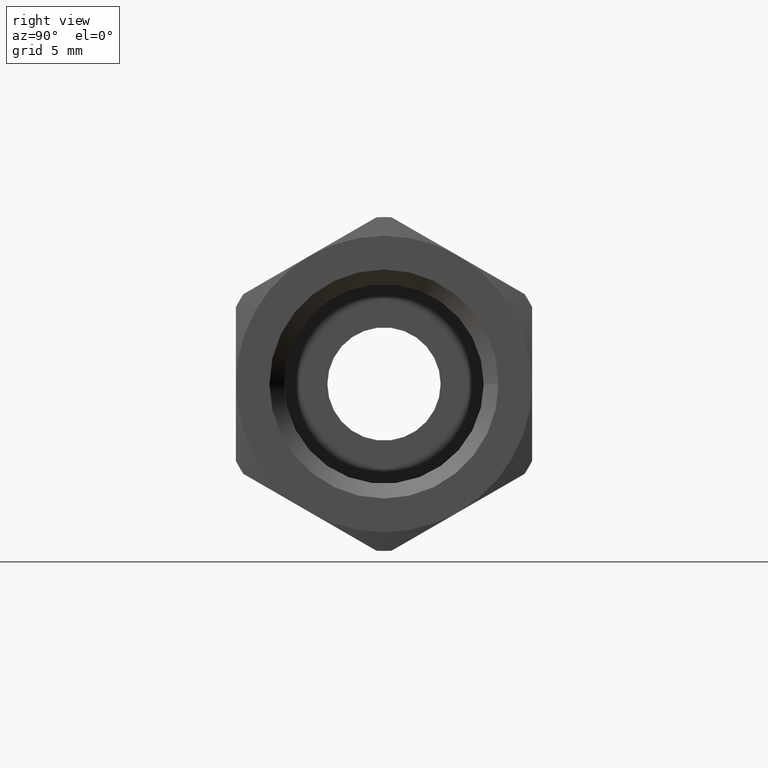
[diagram: clean part render]
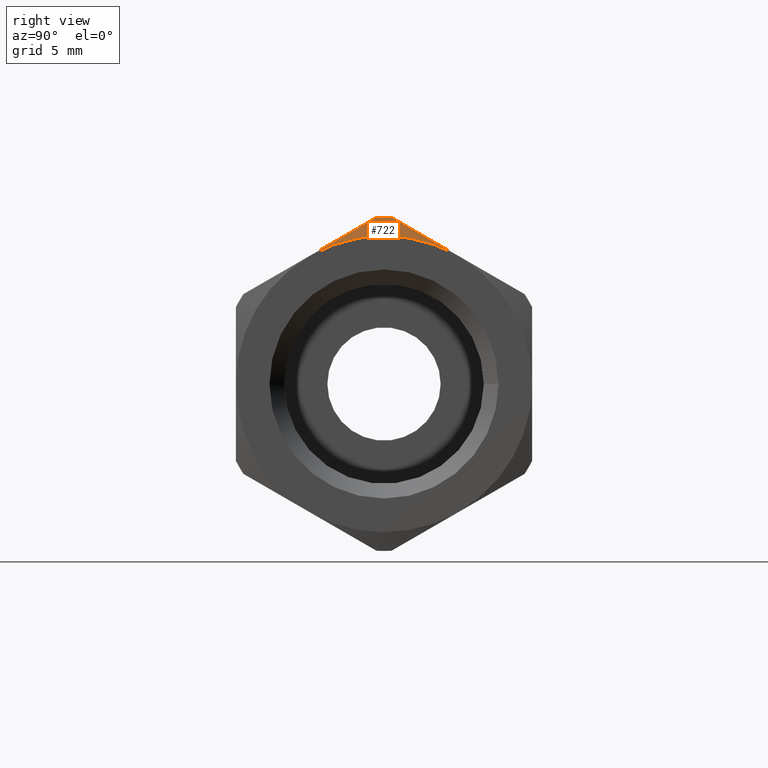
[diagram: same view with one face highlighted and labeled with its STEP entity id]
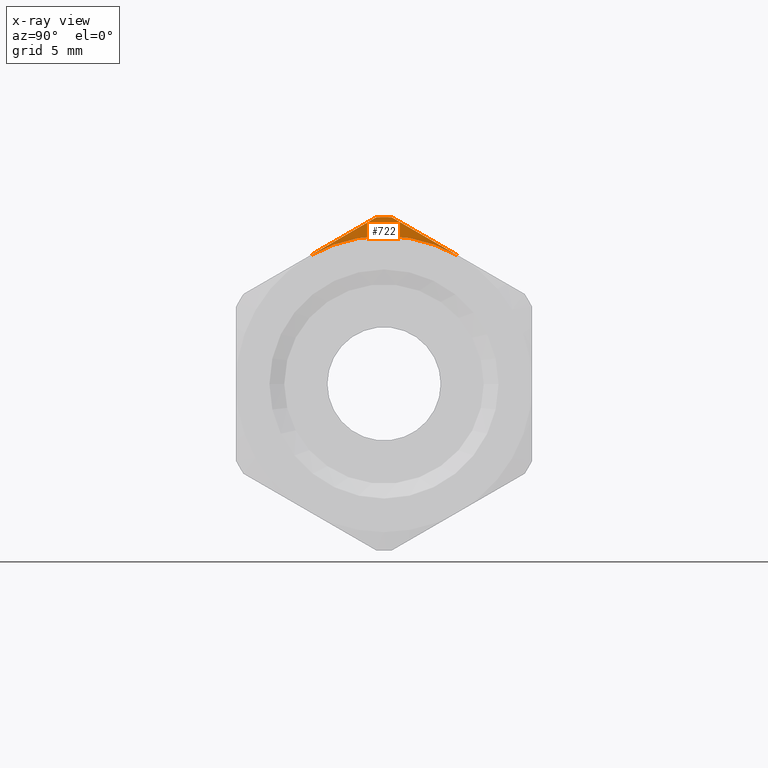
[diagram: x-ray of the same camera — body ghosted, the highlighted face saturated]
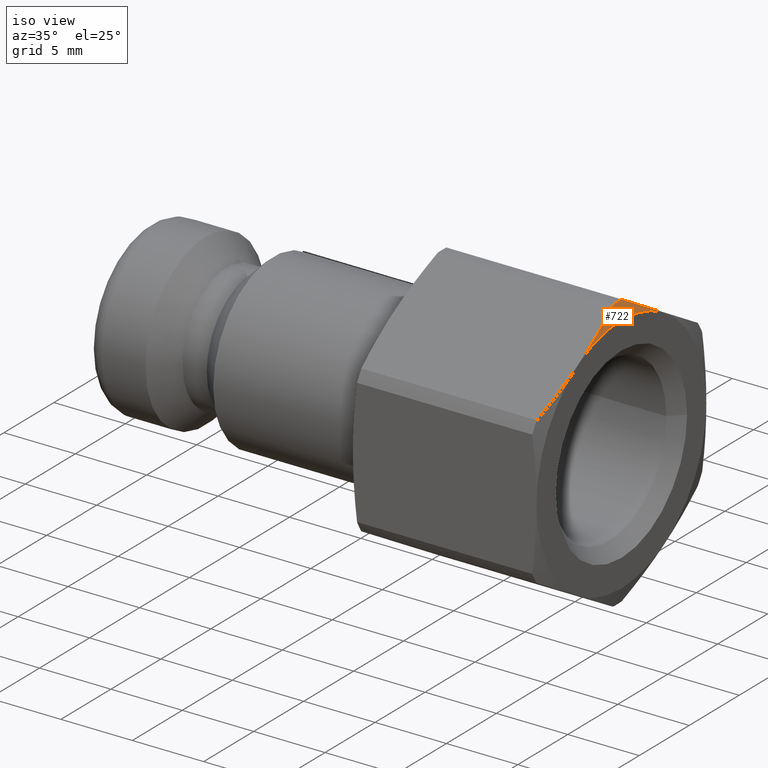
[diagram: same view with one face highlighted and labeled with its STEP entity id]
A machine part, right view. The second image highlights one B-rep face of the part: STEP entity #722.
The next image is the same camera in x-ray: the body ghosted, the highlighted face saturated — about 0% of this face is hidden behind the body in this view.
A second angle (iso view) of the same face is appended — the face is thin or edge-on in the first view.
In plain terms, the highlighted conical surface has half-angle 75 deg.
Its self-contained STEP definition (entity closure, byte-faithful):
#523=CARTESIAN_POINT('',(33.250000000000000,-4.249999999999998,7.361215932167731));
#524=VERTEX_POINT('',#523);
#538=CARTESIAN_POINT('',(32.961954618136538,-0.432544204578131,9.565225063274042));
#539=VERTEX_POINT('',#538);
#540=CARTESIAN_POINT('',(32.961954618136538,-0.432544204578132,9.565225063274042));
#541=CARTESIAN_POINT('',(33.250000000000000,-2.454792572000761,8.397679423974305));
#542=CARTESIAN_POINT('',(33.250000000000000,-4.249999999999998,7.361215932167731));
#550=(BOUNDED_CURVE()B_SPLINE_CURVE(2,(#540,#541,#542),.UNSPECIFIED.,.F.,.U.)B_SPLINE_CURVE_WITH_KNOTS((3,3),(0.0,0.441955310884671),.UNSPECIFIED.)CURVE()GEOMETRIC_REPRESENTATION_ITEM()RATIONAL_B_SPLINE_CURVE((1.0,1.031133014754915,1.0))REPRESENTATION_ITEM(''));
#551=EDGE_CURVE('',#539,#524,#550,.T.);
#597=CARTESIAN_POINT('',(32.961954618136538,0.432544204578135,9.565225063274042));
#598=VERTEX_POINT('',#597);
#605=CARTESIAN_POINT('',(33.250000000000000,4.250000000000001,7.361215932167728));
#606=VERTEX_POINT('',#605);
#607=CARTESIAN_POINT('',(33.250000000000000,4.250000000000001,7.361215932167728));
#608=CARTESIAN_POINT('',(33.250000000000000,2.454792572000771,8.397679423974299));
#609=CARTESIAN_POINT('',(32.961954618136538,0.432544204578134,9.565225063274042));
#617=(BOUNDED_CURVE()B_SPLINE_CURVE(2,(#607,#608,#609),.UNSPECIFIED.,.F.,.U.)B_SPLINE_CURVE_WITH_KNOTS((3,3),(0.441955310884671,0.883910621769342),.UNSPECIFIED.)CURVE()GEOMETRIC_REPRESENTATION_ITEM()RATIONAL_B_SPLINE_CURVE((1.0,1.031133014754915,1.0))REPRESENTATION_ITEM(''));
#618=EDGE_CURVE('',#606,#598,#617,.T.);
#699=CARTESIAN_POINT('',(33.105977309068273,0.0,0.0));
#700=DIRECTION('',(-1.0,0.0,0.0));
#701=DIRECTION('',(0.0,1.0,0.0));
#702=AXIS2_PLACEMENT_3D('',#699,#700,#701);
#703=CONICAL_SURFACE('',#702,9.037500000000001,74.999999999999730);
#704=ORIENTED_EDGE('',*,*,#551,.T.);
#705=CARTESIAN_POINT('',(33.250000000000000,0.0,0.0));
#706=DIRECTION('',(1.0,0.0,0.0));
#707=DIRECTION('',(0.0,1.0,0.0));
#708=AXIS2_PLACEMENT_3D('',#705,#706,#707);
#709=CIRCLE('',#708,8.500000000000000);
#710=EDGE_CURVE('',#606,#524,#709,.T.);
#711=ORIENTED_EDGE('',*,*,#710,.F.);
#712=ORIENTED_EDGE('',*,*,#618,.T.);
#713=CARTESIAN_POINT('',(32.961954618136538,0.0,0.0));
#714=DIRECTION('',(1.0,0.0,0.0));
#715=DIRECTION('',(0.0,1.0,0.0));
#716=AXIS2_PLACEMENT_3D('',#713,#714,#715);
#717=CIRCLE('',#716,9.574999999999999);
#718=EDGE_CURVE('',#598,#539,#717,.T.);
#719=ORIENTED_EDGE('',*,*,#718,.T.);
#720=EDGE_LOOP('',(#704,#711,#712,#719));
#721=FACE_OUTER_BOUND('',#720,.T.);
#722=ADVANCED_FACE('',(#721),#703,.T.);